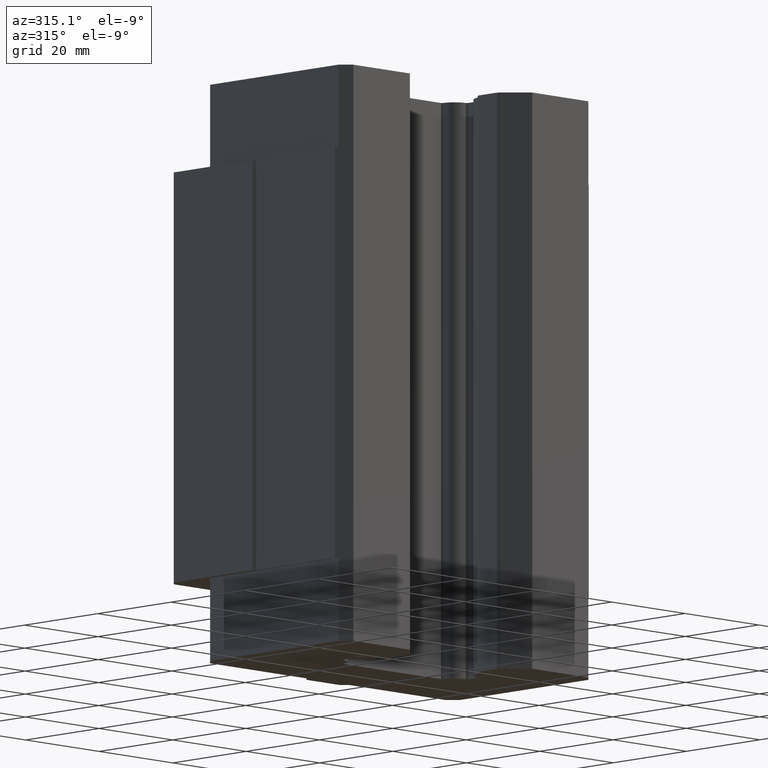
[diagram: clean part render]
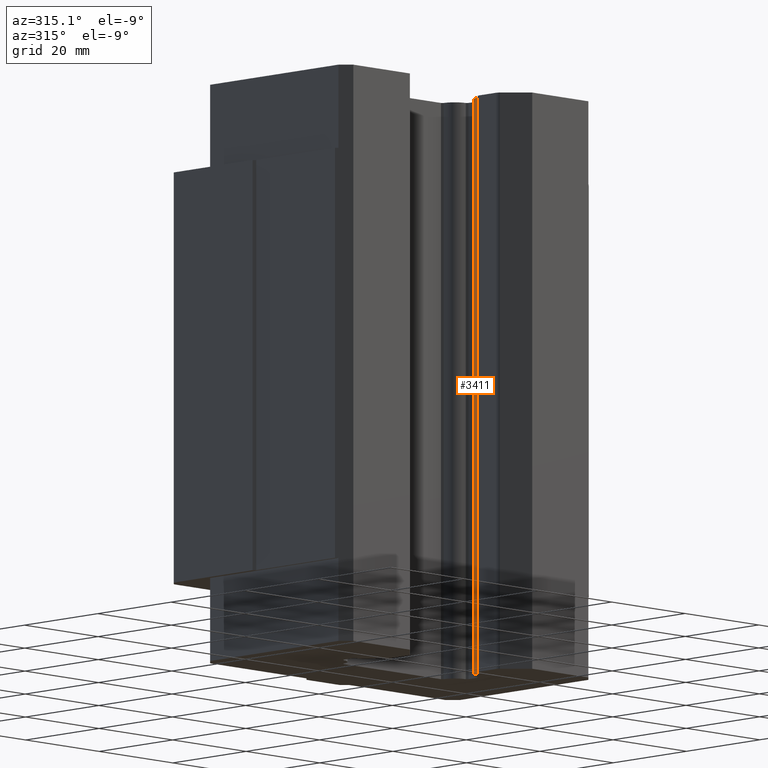
[diagram: same view with one face highlighted and labeled with its STEP entity id]
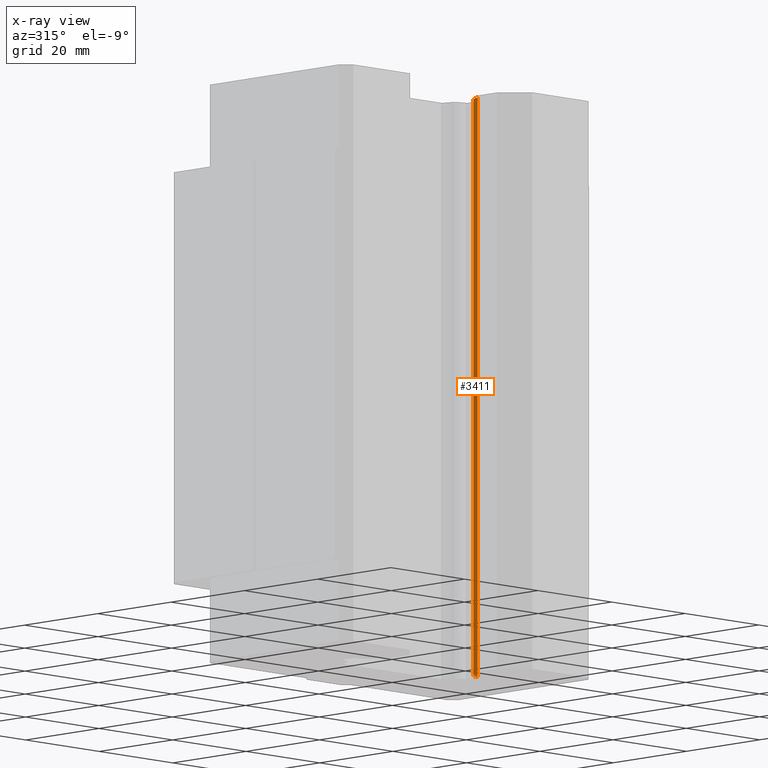
[diagram: x-ray of the same camera — body ghosted, the highlighted face saturated]
A machine part, auxiliary view. The second image highlights one B-rep face of the part: STEP entity #3411.
The next image is the same camera in x-ray: the body ghosted, the highlighted face saturated — about 0% of this face is hidden behind the body in this view.
In plain terms, the highlighted cylindrical surface (edge-blend (fillet) strip) has radius 3.25 mm, axis along (0, 0, 1).
Its self-contained STEP definition (entity closure, byte-faithful):
#876 = VERTEX_POINT ( 'NONE', #6988 ) ;
#920 = VERTEX_POINT ( 'NONE', #7104 ) ;
#988 = EDGE_CURVE ( 'NONE', #876, #920, #7184, .T. ) ;
#3399 = ORIENTED_EDGE ( 'NONE', *, *, #3457, .F. ) ;
#3403 = EDGE_CURVE ( 'NONE', #920, #3404, #11914, .T. ) ;
#3404 = VERTEX_POINT ( 'NONE', #11910 ) ;
#3406 = ORIENTED_EDGE ( 'NONE', *, *, #3403, .T. ) ;
#3408 = EDGE_LOOP ( 'NONE', ( #3406, #3399, #3450, #3435 ) ) ;
#3411 = ADVANCED_FACE ( 'NONE', ( #11905 ), #11904, .T. ) ;
#3435 = ORIENTED_EDGE ( 'NONE', *, *, #988, .T. ) ;
#3439 = EDGE_CURVE ( 'NONE', #876, #3452, #11983, .T. ) ;
#3450 = ORIENTED_EDGE ( 'NONE', *, *, #3439, .F. ) ;
#3452 = VERTEX_POINT ( 'NONE', #11968 ) ;
#3457 = EDGE_CURVE ( 'NONE', #3452, #3404, #11961, .T. ) ;
#6988 = CARTESIAN_POINT ( 'NONE',  ( 16.63447797535927500, -6.626943380878366000, 56.20000000000001000 ) ) ;
#7104 = CARTESIAN_POINT ( 'NONE',  ( 16.63447797535927500, -6.626943380878366000, -56.20000000000001000 ) ) ;
#7181 = DIRECTION ( 'NONE',  ( 0.0000000000000000000, 0.0000000000000000000, -1.000000000000000000 ) ) ;
#7182 = VECTOR ( 'NONE', #7181, 1000.000000000000000 ) ;
#7183 = CARTESIAN_POINT ( 'NONE',  ( 16.63447797536002100, -6.626943380878311800, -40.00000000000000000 ) ) ;
#7184 = LINE ( 'NONE', #7183, #7182 ) ;
#11900 = DIRECTION ( 'NONE',  ( 1.000000000000000000, 0.0000000000000000000, 0.0000000000000000000 ) ) ;
#11901 = DIRECTION ( 'NONE',  ( 0.0000000000000000000, 0.0000000000000000000, 1.000000000000000000 ) ) ;
#11902 = CARTESIAN_POINT ( 'NONE',  ( 16.86757359313000000, -9.868573593128999700, -40.00000000000000000 ) ) ;
#11903 = AXIS2_PLACEMENT_3D ( 'NONE', #11902, #11901, #11900 ) ;
#11904 = CYLINDRICAL_SURFACE ( 'NONE', #11903, 3.249999999999999600 ) ;
#11905 = FACE_OUTER_BOUND ( 'NONE', #3408, .T. ) ;
#11910 = CARTESIAN_POINT ( 'NONE',  ( 13.62594338087963100, -9.635477975359370000, -56.20000000000001000 ) ) ;
#11911 = DIRECTION ( 'NONE',  ( 1.000000000000000000, 0.0000000000000000000, 0.0000000000000000000 ) ) ;
#11912 = DIRECTION ( 'NONE',  ( 0.0000000000000000000, 0.0000000000000000000, 1.000000000000000000 ) ) ;
#11913 = AXIS2_PLACEMENT_3D ( 'NONE', #11920, #11912, #11911 ) ;
#11914 = CIRCLE ( 'NONE', #11913, 3.249999999999999600 ) ;
#11920 = CARTESIAN_POINT ( 'NONE',  ( 16.86757359313000000, -9.868573593128999700, -56.20000000000001000 ) ) ;
#11958 = DIRECTION ( 'NONE',  ( 0.0000000000000000000, 0.0000000000000000000, -1.000000000000000000 ) ) ;
#11959 = VECTOR ( 'NONE', #11958, 1000.000000000000000 ) ;
#11960 = CARTESIAN_POINT ( 'NONE',  ( 13.62594338088000100, -9.635477975359000500, -40.00000000000000000 ) ) ;
#11961 = LINE ( 'NONE', #11960, #11959 ) ;
#11968 = CARTESIAN_POINT ( 'NONE',  ( 13.62594338087963100, -9.635477975359370000, 56.20000000000001000 ) ) ;
#11979 = DIRECTION ( 'NONE',  ( 1.000000000000000000, 0.0000000000000000000, 0.0000000000000000000 ) ) ;
#11980 = DIRECTION ( 'NONE',  ( 0.0000000000000000000, 0.0000000000000000000, 1.000000000000000000 ) ) ;
#11981 = CARTESIAN_POINT ( 'NONE',  ( 16.86757359313000000, -9.868573593128999700, 56.20000000000001000 ) ) ;
#11982 = AXIS2_PLACEMENT_3D ( 'NONE', #11981, #11980, #11979 ) ;
#11983 = CIRCLE ( 'NONE', #11982, 3.249999999999999600 ) ;